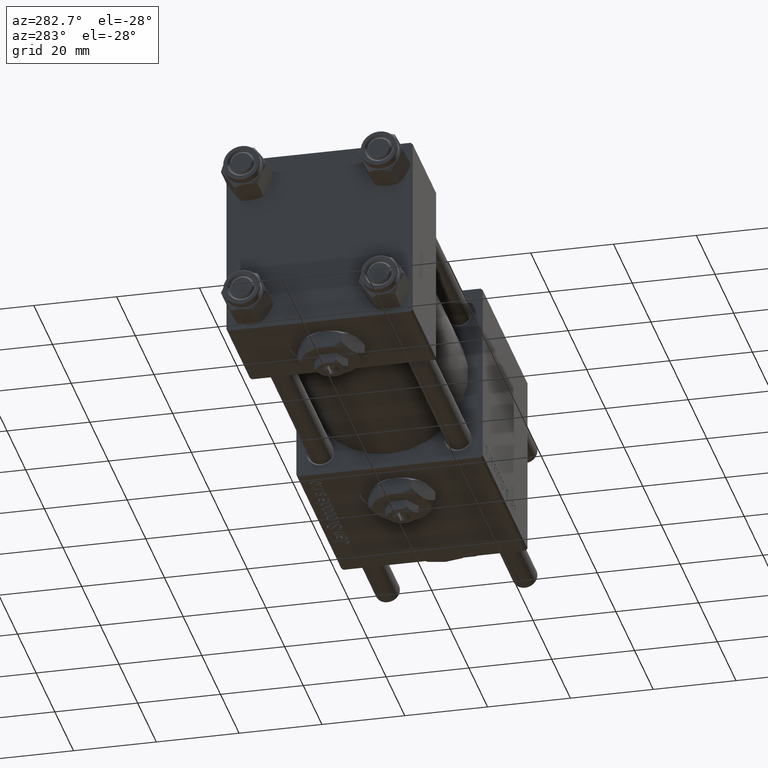
[diagram: clean part render]
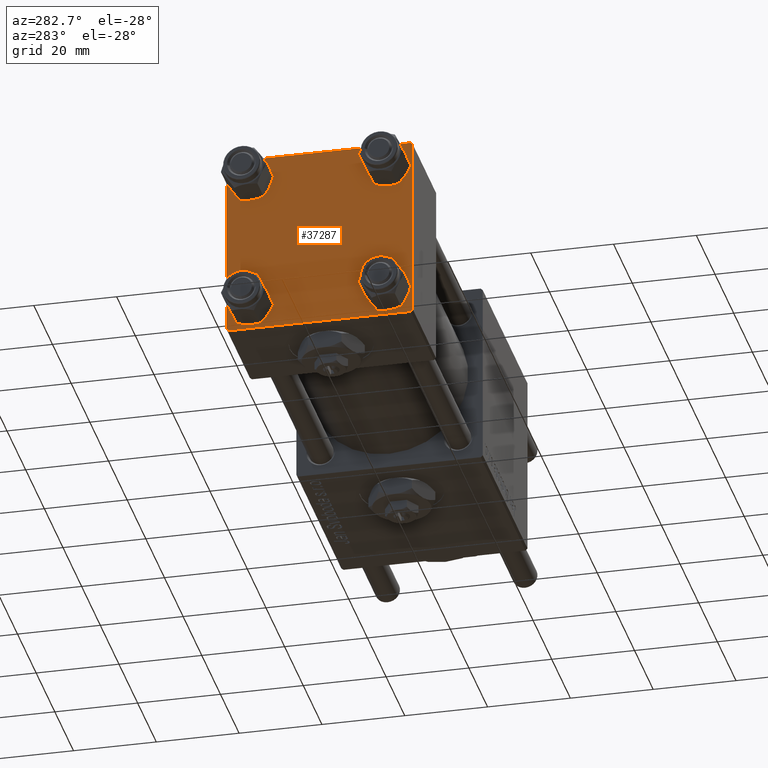
[diagram: same view with one face highlighted and labeled with its STEP entity id]
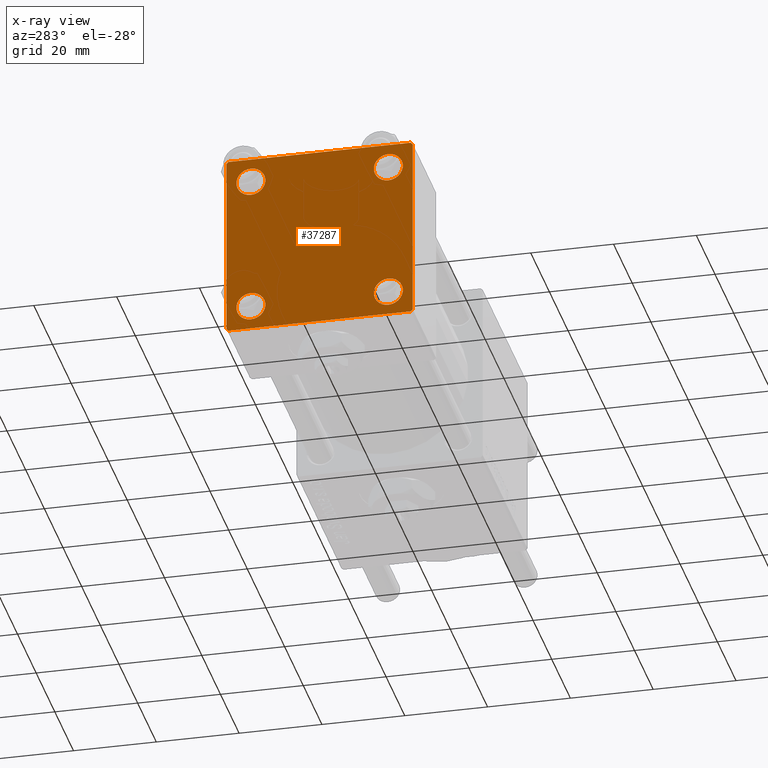
[diagram: x-ray of the same camera — body ghosted, the highlighted face saturated]
A machine part, auxiliary view. The second image highlights one B-rep face of the part: STEP entity #37287.
The next image is the same camera in x-ray: the body ghosted, the highlighted face saturated — about 0% of this face is hidden behind the body in this view.
In plain terms, the highlighted planar face has unit normal (-1, 0, 0).
Its self-contained STEP definition (entity closure, byte-faithful):
#223 = CIRCLE ( 'NONE', #43910, 3.499999999999996003 ) ;
#492 = AXIS2_PLACEMENT_3D ( 'NONE', #45539, #45232, #50001 ) ;
#1000 = DIRECTION ( 'NONE',  ( 0.000000000000000000, 0.000000000000000000, 1.000000000000000000 ) ) ;
#1232 = CARTESIAN_POINT ( 'NONE',  ( 0.000000000000000000, -16.59999999999999076, 16.60000000000000853 ) ) ;
#1431 = EDGE_LOOP ( 'NONE', ( #21966, #20577, #54612, #14202, #42011, #52468, #22637, #21574 ) ) ;
#2077 = LINE ( 'NONE', #38372, #26406 ) ;
#2359 = CARTESIAN_POINT ( 'NONE',  ( 0.000000000000000000, 16.59999999999999787, -16.60000000000000497 ) ) ;
#3218 = DIRECTION ( 'NONE',  ( 0.000000000000000000, 0.7071067811865474617, -0.7071067811865474617 ) ) ;
#3452 = FACE_BOUND ( 'NONE', #38484, .T. ) ;
#3467 = CARTESIAN_POINT ( 'NONE',  ( 0.000000000000000000, -21.99999999999997158, -22.50000000000000711 ) ) ;
#3524 = VERTEX_POINT ( 'NONE', #33223 ) ;
#4018 = LINE ( 'NONE', #18006, #32454 ) ;
#4472 = DIRECTION ( 'NONE',  ( -0.000000000000000000, -0.7071067811865426878, -0.7071067811865524577 ) ) ;
#5029 = CARTESIAN_POINT ( 'NONE',  ( 0.000000000000000000, -22.50000000000000000, -21.99999999999997158 ) ) ;
#5164 = DIRECTION ( 'NONE',  ( 0.000000000000000000, -1.000000000000000000, -7.709882115452476934E-17 ) ) ;
#5892 = VERTEX_POINT ( 'NONE', #3467 ) ;
#6455 = EDGE_CURVE ( 'NONE', #6458, #14639, #2077, .T. ) ;
#6458 = VERTEX_POINT ( 'NONE', #25297 ) ;
#6464 = DIRECTION ( 'NONE',  ( 0.000000000000000000, 0.000000000000000000, 1.000000000000000000 ) ) ;
#6468 = EDGE_CURVE ( 'NONE', #31540, #43971, #50143, .T. ) ;
#6586 = VECTOR ( 'NONE', #21454, 999.9999999999998863 ) ;
#7892 = CARTESIAN_POINT ( 'NONE',  ( 0.000000000000000000, -16.59999999999999076, 13.10000000000001030 ) ) ;
#8215 = DIRECTION ( 'NONE',  ( -0.000000000000000000, 0.000000000000000000, 1.000000000000000000 ) ) ;
#8535 = CARTESIAN_POINT ( 'NONE',  ( 0.000000000000000000, -16.59999999999999076, -16.60000000000000853 ) ) ;
#9315 = AXIS2_PLACEMENT_3D ( 'NONE', #21628, #48397, #8215 ) ;
#9599 = ORIENTED_EDGE ( 'NONE', *, *, #56747, .T. ) ;
#10463 = CARTESIAN_POINT ( 'NONE',  ( 0.000000000000000000, -21.99999999999997868, 22.50000000000000000 ) ) ;
#11347 = VERTEX_POINT ( 'NONE', #10463 ) ;
#11613 = CARTESIAN_POINT ( 'NONE',  ( 0.000000000000000000, -16.59999999999999076, -20.10000000000000497 ) ) ;
#12411 = DIRECTION ( 'NONE',  ( 0.000000000000000000, 0.000000000000000000, 1.000000000000000000 ) ) ;
#13973 = EDGE_CURVE ( 'NONE', #18084, #17234, #17948, .T. ) ;
#14120 = DIRECTION ( 'NONE',  ( 1.000000000000000000, -0.000000000000000000, 0.000000000000000000 ) ) ;
#14202 = ORIENTED_EDGE ( 'NONE', *, *, #51768, .T. ) ;
#14360 = DIRECTION ( 'NONE',  ( 0.000000000000000000, 0.000000000000000000, 1.000000000000000000 ) ) ;
#14639 = VERTEX_POINT ( 'NONE', #5029 ) ;
#15767 = DIRECTION ( 'NONE',  ( 1.000000000000000000, -0.000000000000000000, 0.000000000000000000 ) ) ;
#16187 = DIRECTION ( 'NONE',  ( 0.000000000000000000, 0.000000000000000000, 1.000000000000000000 ) ) ;
#17234 = VERTEX_POINT ( 'NONE', #7892 ) ;
#17424 = DIRECTION ( 'NONE',  ( 0.000000000000000000, -0.7071067811865426878, 0.7071067811865524577 ) ) ;
#17938 = DIRECTION ( 'NONE',  ( 0.000000000000000000, 0.000000000000000000, -1.000000000000000000 ) ) ;
#17948 = CIRCLE ( 'NONE', #50267, 3.499999999999996003 ) ;
#18006 = CARTESIAN_POINT ( 'NONE',  ( 0.000000000000000000, -22.25000000000014566, -22.24999999999984013 ) ) ;
#18084 = VERTEX_POINT ( 'NONE', #33448 ) ;
#18168 = VERTEX_POINT ( 'NONE', #36094 ) ;
#18579 = ORIENTED_EDGE ( 'NONE', *, *, #13973, .T. ) ;
#18602 = EDGE_LOOP ( 'NONE', ( #18579, #9599 ) ) ;
#19654 = DIRECTION ( 'NONE',  ( 0.000000000000000000, 0.000000000000000000, 1.000000000000000000 ) ) ;
#19725 = AXIS2_PLACEMENT_3D ( 'NONE', #2359, #15767, #19654 ) ;
#20577 = ORIENTED_EDGE ( 'NONE', *, *, #43263, .T. ) ;
#20761 = DIRECTION ( 'NONE',  ( 1.000000000000000000, -0.000000000000000000, 0.000000000000000000 ) ) ;
#21454 = DIRECTION ( 'NONE',  ( -0.000000000000000000, 0.7071067811865525687, 0.7071067811865425767 ) ) ;
#21574 = ORIENTED_EDGE ( 'NONE', *, *, #57310, .T. ) ;
#21628 = CARTESIAN_POINT ( 'NONE',  ( 0.000000000000000000, 0.000000000000000000, 0.000000000000000000 ) ) ;
#21829 = LINE ( 'NONE', #26865, #36273 ) ;
#21966 = ORIENTED_EDGE ( 'NONE', *, *, #52954, .T. ) ;
#22340 = CARTESIAN_POINT ( 'NONE',  ( 0.000000000000000000, 22.25000000000014566, -22.24999999999984013 ) ) ;
#22637 = ORIENTED_EDGE ( 'NONE', *, *, #34517, .F. ) ;
#22797 = VECTOR ( 'NONE', #4472, 1000.000000000000000 ) ;
#22926 = AXIS2_PLACEMENT_3D ( 'NONE', #54565, #14120, #1000 ) ;
#23803 = AXIS2_PLACEMENT_3D ( 'NONE', #8535, #26702, #49301 ) ;
#25008 = DIRECTION ( 'NONE',  ( 0.000000000000000000, 0.000000000000000000, -1.000000000000000000 ) ) ;
#25059 = EDGE_CURVE ( 'NONE', #41687, #18168, #27114, .T. ) ;
#25297 = CARTESIAN_POINT ( 'NONE',  ( 0.000000000000000000, -22.50000000000000000, 22.00000000000000000 ) ) ;
#25552 = EDGE_CURVE ( 'NONE', #46485, #27807, #34702, .T. ) ;
#25918 = LINE ( 'NONE', #48805, #6586 ) ;
#26406 = VECTOR ( 'NONE', #25008, 1000.000000000000000 ) ;
#26702 = DIRECTION ( 'NONE',  ( 1.000000000000000000, -0.000000000000000000, 0.000000000000000000 ) ) ;
#26865 = CARTESIAN_POINT ( 'NONE',  ( 0.000000000000000000, 22.50000000000000000, 22.50000000000000355 ) ) ;
#26939 = ORIENTED_EDGE ( 'NONE', *, *, #50923, .T. ) ;
#27114 = CIRCLE ( 'NONE', #492, 3.499999999999996003 ) ;
#27228 = VERTEX_POINT ( 'NONE', #58740 ) ;
#27453 = DIRECTION ( 'NONE',  ( 1.000000000000000000, -0.000000000000000000, 0.000000000000000000 ) ) ;
#27807 = VERTEX_POINT ( 'NONE', #11613 ) ;
#28505 = ORIENTED_EDGE ( 'NONE', *, *, #54424, .T. ) ;
#30176 = CARTESIAN_POINT ( 'NONE',  ( 0.000000000000000000, 16.59999999999999787, -20.10000000000000142 ) ) ;
#31540 = VERTEX_POINT ( 'NONE', #55125 ) ;
#32246 = LINE ( 'NONE', #41175, #41501 ) ;
#32454 = VECTOR ( 'NONE', #17424, 1000.000000000000000 ) ;
#33223 = CARTESIAN_POINT ( 'NONE',  ( 0.000000000000000000, 21.99999999999999289, 22.50000000000000355 ) ) ;
#33448 = CARTESIAN_POINT ( 'NONE',  ( 0.000000000000000000, -16.59999999999999076, 20.10000000000000853 ) ) ;
#34517 = EDGE_CURVE ( 'NONE', #3524, #11347, #32246, .T. ) ;
#34702 = CIRCLE ( 'NONE', #46092, 3.499999999999996003 ) ;
#35038 = LINE ( 'NONE', #48442, #51554 ) ;
#35785 = VECTOR ( 'NONE', #3218, 1000.000000000000114 ) ;
#36094 = CARTESIAN_POINT ( 'NONE',  ( 0.000000000000000000, 16.59999999999999787, 13.10000000000000675 ) ) ;
#36273 = VECTOR ( 'NONE', #17938, 1000.000000000000000 ) ;
#37287 = ADVANCED_FACE ( 'NONE', ( #53146, #38885, #3452, #48975, #52559 ), #48687, .T. ) ;
#38372 = CARTESIAN_POINT ( 'NONE',  ( 0.000000000000000000, -22.50000000000000000, 22.50000000000000000 ) ) ;
#38484 = EDGE_LOOP ( 'NONE', ( #57487, #26939 ) ) ;
#38885 = FACE_BOUND ( 'NONE', #56195, .T. ) ;
#40348 = CARTESIAN_POINT ( 'NONE',  ( 0.000000000000000000, -16.59999999999999076, 16.60000000000000853 ) ) ;
#41175 = CARTESIAN_POINT ( 'NONE',  ( 0.000000000000000000, 22.50000000000000000, 22.50000000000000355 ) ) ;
#41501 = VECTOR ( 'NONE', #5164, 1000.000000000000000 ) ;
#41687 = VERTEX_POINT ( 'NONE', #47850 ) ;
#42011 = ORIENTED_EDGE ( 'NONE', *, *, #6455, .F. ) ;
#43263 = EDGE_CURVE ( 'NONE', #45302, #27228, #45221, .T. ) ;
#43910 = AXIS2_PLACEMENT_3D ( 'NONE', #56934, #47713, #16187 ) ;
#43970 = DIRECTION ( 'NONE',  ( 0.000000000000000000, -1.000000000000000000, -2.312964634635742957E-16 ) ) ;
#43971 = VERTEX_POINT ( 'NONE', #30176 ) ;
#45221 = LINE ( 'NONE', #22340, #22797 ) ;
#45232 = DIRECTION ( 'NONE',  ( 1.000000000000000000, -0.000000000000000000, 0.000000000000000000 ) ) ;
#45273 = CARTESIAN_POINT ( 'NONE',  ( 0.000000000000000000, -16.59999999999999076, -13.10000000000001030 ) ) ;
#45302 = VERTEX_POINT ( 'NONE', #55797 ) ;
#45539 = CARTESIAN_POINT ( 'NONE',  ( 0.000000000000000000, 16.59999999999999787, 16.60000000000000497 ) ) ;
#46092 = AXIS2_PLACEMENT_3D ( 'NONE', #48104, #20761, #6464 ) ;
#46485 = VERTEX_POINT ( 'NONE', #45273 ) ;
#46793 = CIRCLE ( 'NONE', #53473, 3.499999999999996003 ) ;
#47522 = CIRCLE ( 'NONE', #23803, 3.499999999999996003 ) ;
#47617 = EDGE_CURVE ( 'NONE', #6458, #11347, #25918, .T. ) ;
#47713 = DIRECTION ( 'NONE',  ( 1.000000000000000000, -0.000000000000000000, 0.000000000000000000 ) ) ;
#47850 = CARTESIAN_POINT ( 'NONE',  ( 0.000000000000000000, 16.59999999999999787, 20.10000000000000142 ) ) ;
#48104 = CARTESIAN_POINT ( 'NONE',  ( 0.000000000000000000, -16.59999999999999076, -16.60000000000000853 ) ) ;
#48397 = DIRECTION ( 'NONE',  ( -1.000000000000000000, 0.000000000000000000, -0.000000000000000000 ) ) ;
#48442 = CARTESIAN_POINT ( 'NONE',  ( 0.000000000000000000, 22.50000000000000000, -22.49999999999999645 ) ) ;
#48687 = PLANE ( 'NONE',  #9315 ) ;
#48739 = LINE ( 'NONE', #54590, #35785 ) ;
#48805 = CARTESIAN_POINT ( 'NONE',  ( -0.000000000000000000, -22.24999999999984013, 22.25000000000015277 ) ) ;
#48975 = FACE_BOUND ( 'NONE', #58417, .T. ) ;
#49121 = ORIENTED_EDGE ( 'NONE', *, *, #25552, .T. ) ;
#49301 = DIRECTION ( 'NONE',  ( 0.000000000000000000, 0.000000000000000000, 1.000000000000000000 ) ) ;
#49709 = VERTEX_POINT ( 'NONE', #52939 ) ;
#50001 = DIRECTION ( 'NONE',  ( 0.000000000000000000, 0.000000000000000000, 1.000000000000000000 ) ) ;
#50051 = EDGE_CURVE ( 'NONE', #27807, #46485, #47522, .T. ) ;
#50143 = CIRCLE ( 'NONE', #19725, 3.499999999999996003 ) ;
#50267 = AXIS2_PLACEMENT_3D ( 'NONE', #40348, #53157, #12411 ) ;
#50467 = CIRCLE ( 'NONE', #22926, 3.499999999999996003 ) ;
#50923 = EDGE_CURVE ( 'NONE', #43971, #31540, #50467, .T. ) ;
#51554 = VECTOR ( 'NONE', #43970, 1000.000000000000000 ) ;
#51768 = EDGE_CURVE ( 'NONE', #5892, #14639, #4018, .T. ) ;
#51798 = ORIENTED_EDGE ( 'NONE', *, *, #50051, .T. ) ;
#52468 = ORIENTED_EDGE ( 'NONE', *, *, #47617, .T. ) ;
#52559 = FACE_OUTER_BOUND ( 'NONE', #1431, .T. ) ;
#52939 = CARTESIAN_POINT ( 'NONE',  ( 0.000000000000000000, 22.50000000000000000, 21.99999999999999645 ) ) ;
#52954 = EDGE_CURVE ( 'NONE', #49709, #45302, #21829, .T. ) ;
#53146 = FACE_BOUND ( 'NONE', #18602, .T. ) ;
#53157 = DIRECTION ( 'NONE',  ( 1.000000000000000000, -0.000000000000000000, 0.000000000000000000 ) ) ;
#53473 = AXIS2_PLACEMENT_3D ( 'NONE', #1232, #27453, #14360 ) ;
#54424 = EDGE_CURVE ( 'NONE', #18168, #41687, #223, .T. ) ;
#54565 = CARTESIAN_POINT ( 'NONE',  ( 0.000000000000000000, 16.59999999999999787, -16.60000000000000497 ) ) ;
#54590 = CARTESIAN_POINT ( 'NONE',  ( 0.000000000000000000, 22.24999999999999645, 22.24999999999999645 ) ) ;
#54612 = ORIENTED_EDGE ( 'NONE', *, *, #56145, .T. ) ;
#55125 = CARTESIAN_POINT ( 'NONE',  ( 0.000000000000000000, 16.59999999999999787, -13.10000000000000675 ) ) ;
#55797 = CARTESIAN_POINT ( 'NONE',  ( 0.000000000000000000, 22.50000000000000000, -21.99999999999996803 ) ) ;
#56145 = EDGE_CURVE ( 'NONE', #27228, #5892, #35038, .T. ) ;
#56195 = EDGE_LOOP ( 'NONE', ( #49121, #51798 ) ) ;
#56747 = EDGE_CURVE ( 'NONE', #17234, #18084, #46793, .T. ) ;
#56934 = CARTESIAN_POINT ( 'NONE',  ( 0.000000000000000000, 16.59999999999999787, 16.60000000000000497 ) ) ;
#57310 = EDGE_CURVE ( 'NONE', #3524, #49709, #48739, .T. ) ;
#57487 = ORIENTED_EDGE ( 'NONE', *, *, #6468, .T. ) ;
#57833 = ORIENTED_EDGE ( 'NONE', *, *, #25059, .T. ) ;
#58417 = EDGE_LOOP ( 'NONE', ( #57833, #28505 ) ) ;
#58740 = CARTESIAN_POINT ( 'NONE',  ( 0.000000000000000000, 21.99999999999999289, -22.49999999999999645 ) ) ;